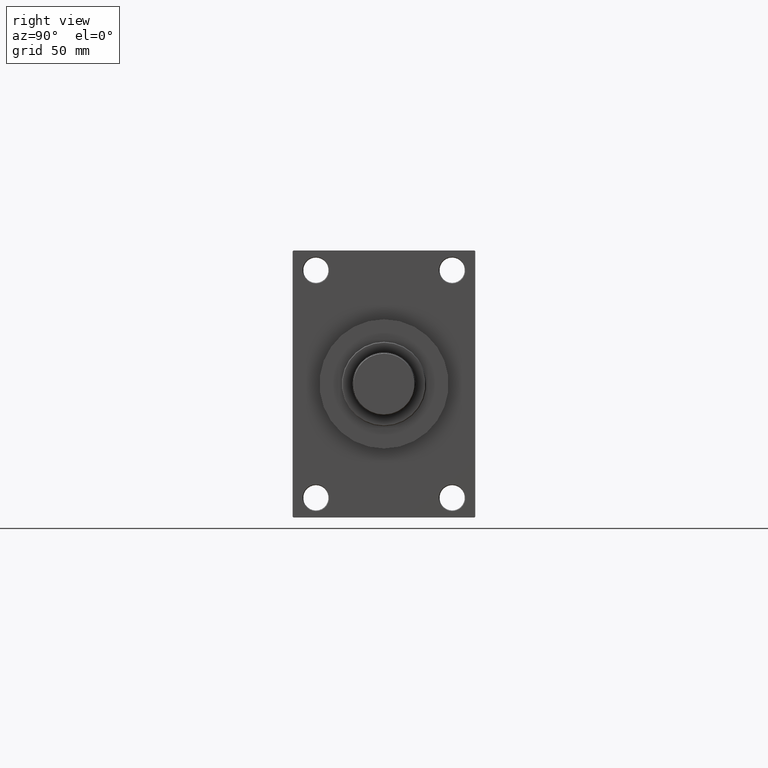
[diagram: clean part render]
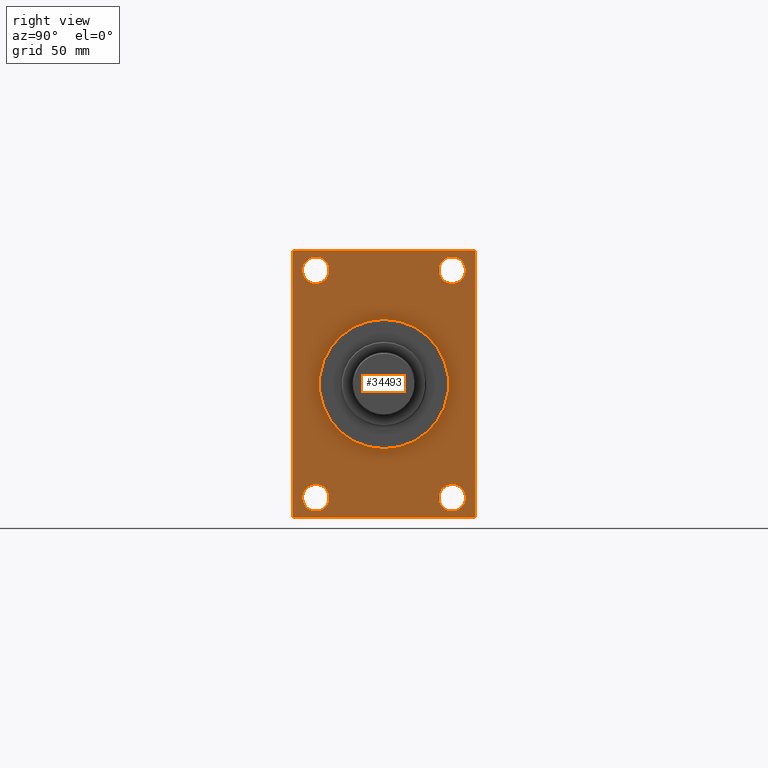
[diagram: same view with one face highlighted and labeled with its STEP entity id]
A machine part, right view. The second image highlights one B-rep face of the part: STEP entity #34493.
In plain terms, the highlighted planar face has unit normal (-1, 0, 0).
Its self-contained STEP definition (entity closure, byte-faithful):
#148 = CIRCLE ( 'NONE', #17251, 9.500000000000008882 ) ;
#338 = CARTESIAN_POINT ( 'NONE',  ( 346.0000000000000000, 64.49999999999997158, 94.99999999999997158 ) ) ;
#498 = CARTESIAN_POINT ( 'NONE',  ( 346.0000000000000000, 48.50000000000000711, 71.50000000000000000 ) ) ;
#573 = CARTESIAN_POINT ( 'NONE',  ( 346.0000000000000000, 48.50000000000000711, 81.00000000000000000 ) ) ;
#1382 = ORIENTED_EDGE ( 'NONE', *, *, #46628, .T. ) ;
#1488 = CIRCLE ( 'NONE', #45735, 46.00000000000000000 ) ;
#1611 = CIRCLE ( 'NONE', #45099, 9.500000000000008882 ) ;
#1817 = ORIENTED_EDGE ( 'NONE', *, *, #37634, .T. ) ;
#2275 = FACE_OUTER_BOUND ( 'NONE', #18246, .T. ) ;
#2883 = CARTESIAN_POINT ( 'NONE',  ( 346.0000000000000000, 48.50000000000000711, -81.00000000000001421 ) ) ;
#4028 = CARTESIAN_POINT ( 'NONE',  ( 346.0000000000000000, -48.50000000000000000, 81.00000000000000000 ) ) ;
#4465 = DIRECTION ( 'NONE',  ( 0.000000000000000000, 0.000000000000000000, 1.000000000000000000 ) ) ;
#4557 = CARTESIAN_POINT ( 'NONE',  ( 346.0000000000000000, -48.50000000000000000, 90.50000000000001421 ) ) ;
#4560 = VECTOR ( 'NONE', #45885, 1000.000000000000000 ) ;
#5085 = DIRECTION ( 'NONE',  ( 0.000000000000000000, -0.7071067811865474617, 0.7071067811865474617 ) ) ;
#5162 = ORIENTED_EDGE ( 'NONE', *, *, #36545, .T. ) ;
#5289 = LINE ( 'NONE', #31298, #4560 ) ;
#5454 = DIRECTION ( 'NONE',  ( -1.000000000000000000, 0.000000000000000000, -0.000000000000000000 ) ) ;
#5585 = ORIENTED_EDGE ( 'NONE', *, *, #11525, .T. ) ;
#5807 = LINE ( 'NONE', #9231, #26664 ) ;
#6068 = VERTEX_POINT ( 'NONE', #9645 ) ;
#6172 = FACE_BOUND ( 'NONE', #15580, .T. ) ;
#6295 = EDGE_LOOP ( 'NONE', ( #32784, #40920 ) ) ;
#6616 = LINE ( 'NONE', #39906, #15449 ) ;
#7517 = DIRECTION ( 'NONE',  ( -1.000000000000000000, 0.000000000000000000, -0.000000000000000000 ) ) ;
#8247 = CARTESIAN_POINT ( 'NONE',  ( 346.0000000000000000, 64.99999999999997158, 94.99999999999997158 ) ) ;
#8486 = LINE ( 'NONE', #8247, #19549 ) ;
#8510 = CIRCLE ( 'NONE', #15520, 9.500000000000008882 ) ;
#8590 = VERTEX_POINT ( 'NONE', #14090 ) ;
#8690 = DIRECTION ( 'NONE',  ( 0.000000000000000000, 0.000000000000000000, -1.000000000000000000 ) ) ;
#8929 = DIRECTION ( 'NONE',  ( 1.000000000000000000, 0.000000000000000000, 0.000000000000000000 ) ) ;
#8946 = EDGE_CURVE ( 'NONE', #9898, #16048, #20823, .T. ) ;
#9231 = CARTESIAN_POINT ( 'NONE',  ( 346.0000000000000000, 64.49999999999997158, 94.99999999999997158 ) ) ;
#9645 = CARTESIAN_POINT ( 'NONE',  ( 346.0000000000000000, -48.50000000000000000, 71.50000000000000000 ) ) ;
#9716 = VERTEX_POINT ( 'NONE', #4557 ) ;
#9795 = VERTEX_POINT ( 'NONE', #42239 ) ;
#9800 = ORIENTED_EDGE ( 'NONE', *, *, #43357, .T. ) ;
#9898 = VERTEX_POINT ( 'NONE', #21070 ) ;
#9981 = DIRECTION ( 'NONE',  ( 1.000000000000000000, 0.000000000000000000, 0.000000000000000000 ) ) ;
#10048 = EDGE_CURVE ( 'NONE', #6068, #9716, #31356, .T. ) ;
#10260 = VERTEX_POINT ( 'NONE', #22664 ) ;
#10304 = VERTEX_POINT ( 'NONE', #29712 ) ;
#10413 = AXIS2_PLACEMENT_3D ( 'NONE', #4028, #45342, #18853 ) ;
#10754 = CARTESIAN_POINT ( 'NONE',  ( 346.0000000000000000, -48.49999999999999289, -90.50000000000002842 ) ) ;
#10925 = DIRECTION ( 'NONE',  ( 0.000000000000000000, 0.000000000000000000, 1.000000000000000000 ) ) ;
#11525 = EDGE_CURVE ( 'NONE', #10304, #9898, #38009, .T. ) ;
#12100 = EDGE_LOOP ( 'NONE', ( #1817, #45686 ) ) ;
#12179 = EDGE_CURVE ( 'NONE', #9795, #23879, #5807, .T. ) ;
#12473 = EDGE_CURVE ( 'NONE', #35360, #13550, #36765, .T. ) ;
#12978 = CARTESIAN_POINT ( 'NONE',  ( 346.0000000000000000, -48.49999999999999289, -81.00000000000001421 ) ) ;
#12987 = DIRECTION ( 'NONE',  ( 0.000000000000000000, 0.000000000000000000, 1.000000000000000000 ) ) ;
#13310 = DIRECTION ( 'NONE',  ( 0.000000000000000000, 0.7071067811865474617, -0.7071067811865474617 ) ) ;
#13333 = LINE ( 'NONE', #16019, #30066 ) ;
#13486 = PLANE ( 'NONE',  #32671 ) ;
#13550 = VERTEX_POINT ( 'NONE', #18891 ) ;
#13816 = CARTESIAN_POINT ( 'NONE',  ( 346.0000000000000000, 48.50000000000000711, -71.50000000000001421 ) ) ;
#14090 = CARTESIAN_POINT ( 'NONE',  ( 346.0000000000000000, 64.49999999999987210, -95.00000000000001421 ) ) ;
#14148 = VERTEX_POINT ( 'NONE', #33782 ) ;
#14171 = CARTESIAN_POINT ( 'NONE',  ( 346.0000000000000000, 48.50000000000000711, -90.50000000000002842 ) ) ;
#15428 = CARTESIAN_POINT ( 'NONE',  ( 346.0000000000000000, -65.00000000000001421, 94.99999999999997158 ) ) ;
#15449 = VECTOR ( 'NONE', #43083, 1000.000000000000000 ) ;
#15520 = AXIS2_PLACEMENT_3D ( 'NONE', #573, #22939, #4465 ) ;
#15580 = EDGE_LOOP ( 'NONE', ( #45031, #9800 ) ) ;
#15733 = CARTESIAN_POINT ( 'NONE',  ( 346.0000000000000000, -48.49999999999999289, -71.50000000000001421 ) ) ;
#15892 = DIRECTION ( 'NONE',  ( -0.000000000000000000, -0.7071067811865378028, -0.7071067811865573427 ) ) ;
#16019 = CARTESIAN_POINT ( 'NONE',  ( 346.0000000000000000, 64.99999999999998579, -94.49999999999997158 ) ) ;
#16048 = VERTEX_POINT ( 'NONE', #18644 ) ;
#16214 = DIRECTION ( 'NONE',  ( -1.000000000000000000, 0.000000000000000000, -0.000000000000000000 ) ) ;
#17117 = FACE_BOUND ( 'NONE', #40856, .T. ) ;
#17251 = AXIS2_PLACEMENT_3D ( 'NONE', #23243, #16214, #38796 ) ;
#18246 = EDGE_LOOP ( 'NONE', ( #5585, #29490, #41388, #28710, #29905, #36945, #5162, #27699 ) ) ;
#18442 = CARTESIAN_POINT ( 'NONE',  ( 346.0000000000000000, -64.50000000000002842, 94.99999999999997158 ) ) ;
#18644 = CARTESIAN_POINT ( 'NONE',  ( 346.0000000000000000, -64.50000000000001421, -95.00000000000002842 ) ) ;
#18761 = AXIS2_PLACEMENT_3D ( 'NONE', #35098, #27557, #12987 ) ;
#18853 = DIRECTION ( 'NONE',  ( 0.000000000000000000, 0.000000000000000000, 1.000000000000000000 ) ) ;
#18891 = CARTESIAN_POINT ( 'NONE',  ( 346.0000000000000000, 0.000000000000000000, 46.00000000000000000 ) ) ;
#19084 = VERTEX_POINT ( 'NONE', #13816 ) ;
#19133 = DIRECTION ( 'NONE',  ( 0.000000000000000000, 0.000000000000000000, 1.000000000000000000 ) ) ;
#19423 = ORIENTED_EDGE ( 'NONE', *, *, #35049, .T. ) ;
#19494 = EDGE_LOOP ( 'NONE', ( #27984, #19423 ) ) ;
#19549 = VECTOR ( 'NONE', #30831, 1000.000000000000000 ) ;
#19988 = CARTESIAN_POINT ( 'NONE',  ( 346.0000000000000000, 5.633375276077824704E-15, -46.00000000000000000 ) ) ;
#20001 = CARTESIAN_POINT ( 'NONE',  ( 346.0000000000000000, -65.00000000000001421, 94.49999999999997158 ) ) ;
#20272 = VERTEX_POINT ( 'NONE', #15733 ) ;
#20521 = FACE_BOUND ( 'NONE', #6295, .T. ) ;
#20823 = LINE ( 'NONE', #21064, #29786 ) ;
#21064 = CARTESIAN_POINT ( 'NONE',  ( 346.0000000000000000, -64.50000000000001421, -95.00000000000002842 ) ) ;
#21070 = CARTESIAN_POINT ( 'NONE',  ( 346.0000000000000000, -65.00000000000001421, -94.50000000000002842 ) ) ;
#21219 = AXIS2_PLACEMENT_3D ( 'NONE', #46106, #8929, #8690 ) ;
#21530 = VERTEX_POINT ( 'NONE', #18442 ) ;
#22664 = CARTESIAN_POINT ( 'NONE',  ( 346.0000000000000000, 64.99999999999998579, -94.49999999999997158 ) ) ;
#22736 = VECTOR ( 'NONE', #15892, 1000.000000000000000 ) ;
#22939 = DIRECTION ( 'NONE',  ( -1.000000000000000000, 0.000000000000000000, -0.000000000000000000 ) ) ;
#23243 = CARTESIAN_POINT ( 'NONE',  ( 346.0000000000000000, 48.50000000000000711, -81.00000000000001421 ) ) ;
#23401 = EDGE_CURVE ( 'NONE', #8590, #10260, #13333, .T. ) ;
#23879 = VERTEX_POINT ( 'NONE', #338 ) ;
#24878 = CARTESIAN_POINT ( 'NONE',  ( 346.0000000000000000, 0.000000000000000000, 0.000000000000000000 ) ) ;
#25035 = DIRECTION ( 'NONE',  ( 0.000000000000000000, 0.000000000000000000, -1.000000000000000000 ) ) ;
#26200 = CARTESIAN_POINT ( 'NONE',  ( 346.0000000000000000, -48.50000000000000000, 81.00000000000000000 ) ) ;
#26664 = VECTOR ( 'NONE', #5085, 1000.000000000000114 ) ;
#27315 = DIRECTION ( 'NONE',  ( 0.000000000000000000, 0.000000000000000000, -1.000000000000000000 ) ) ;
#27557 = DIRECTION ( 'NONE',  ( -1.000000000000000000, 0.000000000000000000, -0.000000000000000000 ) ) ;
#27699 = ORIENTED_EDGE ( 'NONE', *, *, #43941, .T. ) ;
#27785 = DIRECTION ( 'NONE',  ( -1.000000000000000000, 0.000000000000000000, -0.000000000000000000 ) ) ;
#27930 = CIRCLE ( 'NONE', #40313, 9.500000000000008882 ) ;
#27984 = ORIENTED_EDGE ( 'NONE', *, *, #10048, .T. ) ;
#28305 = VECTOR ( 'NONE', #27315, 1000.000000000000000 ) ;
#28649 = AXIS2_PLACEMENT_3D ( 'NONE', #2883, #43014, #39123 ) ;
#28710 = ORIENTED_EDGE ( 'NONE', *, *, #23401, .T. ) ;
#29490 = ORIENTED_EDGE ( 'NONE', *, *, #8946, .T. ) ;
#29712 = CARTESIAN_POINT ( 'NONE',  ( 346.0000000000000000, -65.00000000000001421, 94.49999999999997158 ) ) ;
#29786 = VECTOR ( 'NONE', #13310, 1000.000000000000114 ) ;
#29835 = DIRECTION ( 'NONE',  ( -1.000000000000000000, 0.000000000000000000, -0.000000000000000000 ) ) ;
#29905 = ORIENTED_EDGE ( 'NONE', *, *, #30579, .F. ) ;
#30066 = VECTOR ( 'NONE', #30820, 1000.000000000000114 ) ;
#30088 = CARTESIAN_POINT ( 'NONE',  ( 346.0000000000000000, -48.49999999999999289, -81.00000000000001421 ) ) ;
#30379 = EDGE_CURVE ( 'NONE', #19084, #41502, #39509, .T. ) ;
#30505 = CIRCLE ( 'NONE', #46804, 9.500000000000008882 ) ;
#30579 = EDGE_CURVE ( 'NONE', #9795, #10260, #5289, .T. ) ;
#30820 = DIRECTION ( 'NONE',  ( -0.000000000000000000, 0.7071067811865965336, 0.7071067811864985009 ) ) ;
#30831 = DIRECTION ( 'NONE',  ( 0.000000000000000000, -1.000000000000000000, 0.000000000000000000 ) ) ;
#30931 = EDGE_CURVE ( 'NONE', #8590, #16048, #6616, .T. ) ;
#31298 = CARTESIAN_POINT ( 'NONE',  ( 346.0000000000000000, 64.99999999999997158, 94.99999999999997158 ) ) ;
#31356 = CIRCLE ( 'NONE', #10413, 9.500000000000008882 ) ;
#31949 = CIRCLE ( 'NONE', #18761, 9.500000000000008882 ) ;
#32671 = AXIS2_PLACEMENT_3D ( 'NONE', #24878, #5454, #35110 ) ;
#32784 = ORIENTED_EDGE ( 'NONE', *, *, #45320, .F. ) ;
#33782 = CARTESIAN_POINT ( 'NONE',  ( 346.0000000000000000, 48.50000000000000711, 90.50000000000001421 ) ) ;
#34325 = ORIENTED_EDGE ( 'NONE', *, *, #36759, .T. ) ;
#34493 = ADVANCED_FACE ( 'NONE', ( #38993, #6172, #38749, #17117, #20521, #2275 ), #13486, .F. ) ;
#35049 = EDGE_CURVE ( 'NONE', #9716, #6068, #1611, .T. ) ;
#35098 = CARTESIAN_POINT ( 'NONE',  ( 346.0000000000000000, 48.50000000000000711, 81.00000000000000000 ) ) ;
#35110 = DIRECTION ( 'NONE',  ( -0.000000000000000000, 0.000000000000000000, 1.000000000000000000 ) ) ;
#35360 = VERTEX_POINT ( 'NONE', #19988 ) ;
#36545 = EDGE_CURVE ( 'NONE', #23879, #21530, #8486, .T. ) ;
#36759 = EDGE_CURVE ( 'NONE', #14148, #44136, #31949, .T. ) ;
#36765 = CIRCLE ( 'NONE', #21219, 46.00000000000000000 ) ;
#36945 = ORIENTED_EDGE ( 'NONE', *, *, #12179, .T. ) ;
#37634 = EDGE_CURVE ( 'NONE', #41502, #19084, #148, .T. ) ;
#38009 = LINE ( 'NONE', #15428, #28305 ) ;
#38749 = FACE_BOUND ( 'NONE', #12100, .T. ) ;
#38796 = DIRECTION ( 'NONE',  ( 0.000000000000000000, 0.000000000000000000, 1.000000000000000000 ) ) ;
#38993 = FACE_BOUND ( 'NONE', #19494, .T. ) ;
#39123 = DIRECTION ( 'NONE',  ( 0.000000000000000000, 0.000000000000000000, 1.000000000000000000 ) ) ;
#39509 = CIRCLE ( 'NONE', #28649, 9.500000000000008882 ) ;
#39906 = CARTESIAN_POINT ( 'NONE',  ( 346.0000000000000000, 64.99999999999998579, -95.00000000000001421 ) ) ;
#40313 = AXIS2_PLACEMENT_3D ( 'NONE', #12978, #27785, #45548 ) ;
#40856 = EDGE_LOOP ( 'NONE', ( #1382, #34325 ) ) ;
#40920 = ORIENTED_EDGE ( 'NONE', *, *, #12473, .F. ) ;
#41388 = ORIENTED_EDGE ( 'NONE', *, *, #30931, .F. ) ;
#41502 = VERTEX_POINT ( 'NONE', #14171 ) ;
#42239 = CARTESIAN_POINT ( 'NONE',  ( 346.0000000000000000, 64.99999999999997158, 94.49999999999997158 ) ) ;
#42370 = LINE ( 'NONE', #20001, #22736 ) ;
#43014 = DIRECTION ( 'NONE',  ( -1.000000000000000000, 0.000000000000000000, -0.000000000000000000 ) ) ;
#43083 = DIRECTION ( 'NONE',  ( 0.000000000000000000, -1.000000000000000000, -1.067522139062650425E-16 ) ) ;
#43357 = EDGE_CURVE ( 'NONE', #20272, #44009, #30505, .T. ) ;
#43941 = EDGE_CURVE ( 'NONE', #21530, #10304, #42370, .T. ) ;
#44009 = VERTEX_POINT ( 'NONE', #10754 ) ;
#44136 = VERTEX_POINT ( 'NONE', #498 ) ;
#45031 = ORIENTED_EDGE ( 'NONE', *, *, #46762, .T. ) ;
#45099 = AXIS2_PLACEMENT_3D ( 'NONE', #26200, #29835, #19133 ) ;
#45320 = EDGE_CURVE ( 'NONE', #13550, #35360, #1488, .T. ) ;
#45342 = DIRECTION ( 'NONE',  ( -1.000000000000000000, 0.000000000000000000, -0.000000000000000000 ) ) ;
#45548 = DIRECTION ( 'NONE',  ( 0.000000000000000000, 0.000000000000000000, 1.000000000000000000 ) ) ;
#45686 = ORIENTED_EDGE ( 'NONE', *, *, #30379, .T. ) ;
#45735 = AXIS2_PLACEMENT_3D ( 'NONE', #46936, #9981, #25035 ) ;
#45885 = DIRECTION ( 'NONE',  ( 0.000000000000000000, 7.304098846218135653E-17, -1.000000000000000000 ) ) ;
#46106 = CARTESIAN_POINT ( 'NONE',  ( 346.0000000000000000, 0.000000000000000000, 0.000000000000000000 ) ) ;
#46628 = EDGE_CURVE ( 'NONE', #44136, #14148, #8510, .T. ) ;
#46762 = EDGE_CURVE ( 'NONE', #44009, #20272, #27930, .T. ) ;
#46804 = AXIS2_PLACEMENT_3D ( 'NONE', #30088, #7517, #10925 ) ;
#46936 = CARTESIAN_POINT ( 'NONE',  ( 346.0000000000000000, 0.000000000000000000, 0.000000000000000000 ) ) ;